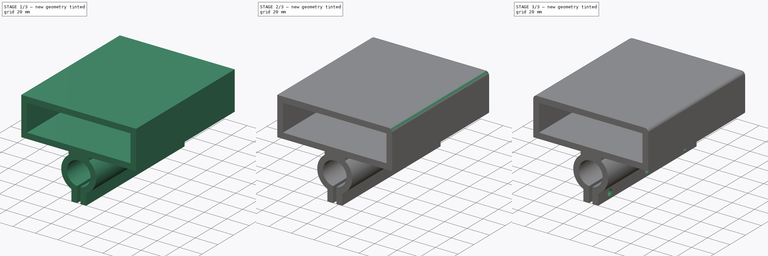
[diagram: build sequence overview — one tinted view per stage of 3, left to right]
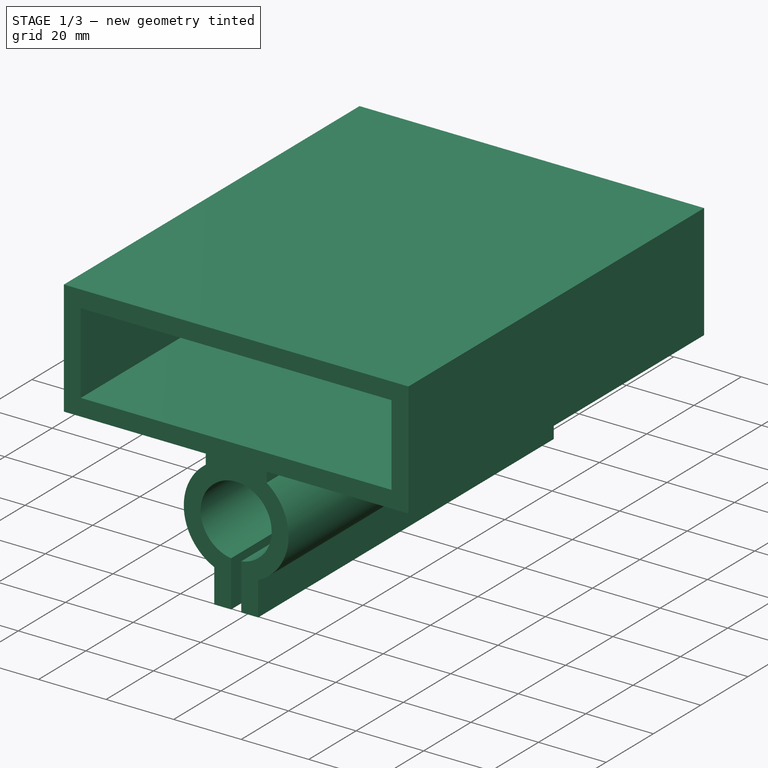
[diagram: stage 1 of 3 — iso view after this stage's code; geometry added in this stage tinted green]
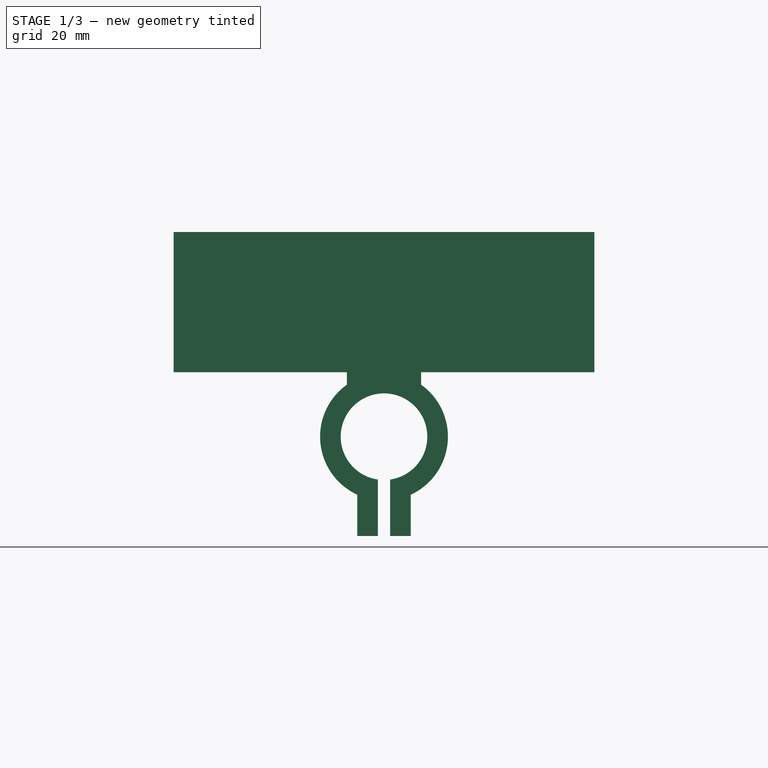
[diagram: stage 1 of 3 — front view after this stage's code; geometry added in this stage tinted green]
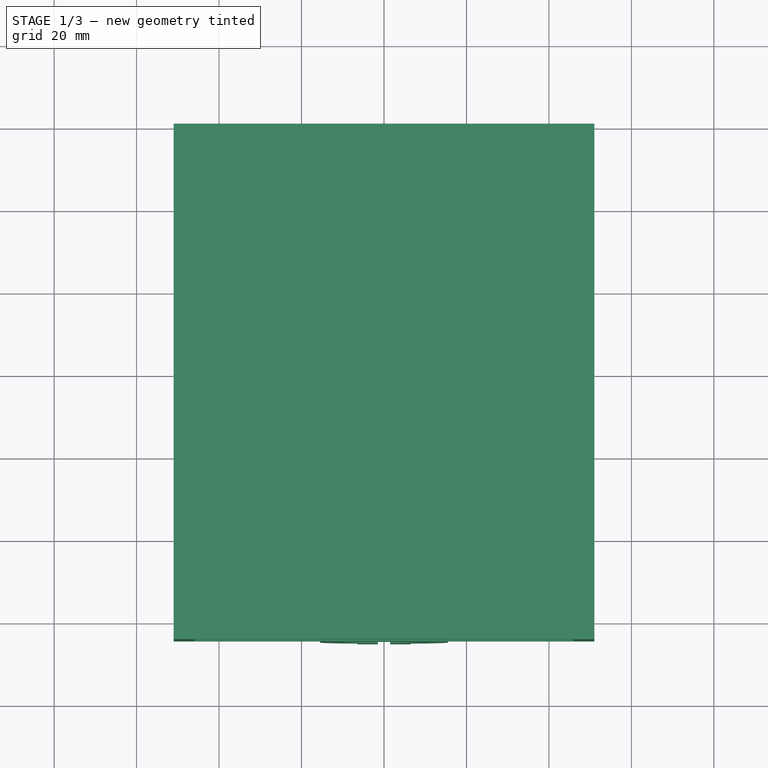
[diagram: stage 1 of 3 — top view after this stage's code; geometry added in this stage tinted green]
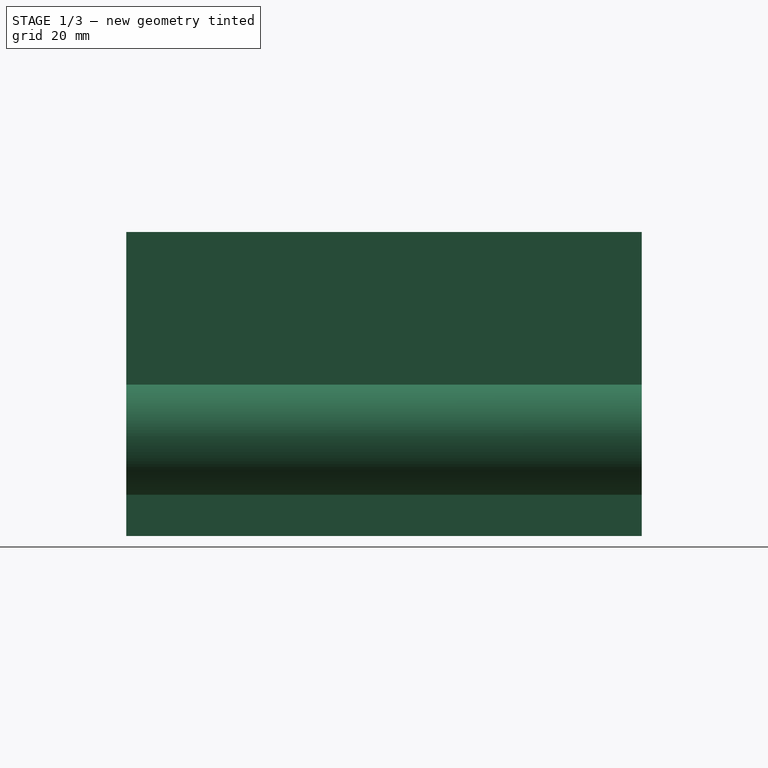
[diagram: stage 1 of 3 — right view after this stage's code; geometry added in this stage tinted green]
FCSTD DOCUMENT  (FreeCAD 0.19R)
Label: bat_holder
License: All rights reserved
LicenseURL: http://en.wikipedia.org/wiki/All_rights_reserved
objects: Sketcher::SketchObject×3, PartDesign::Fillet×3, PartDesign::Pocket×2, PartDesign::Pad×1, PartDesign::Body×1
note: 16 computed .brp shape members not serialized (recipe doc carries the construction recipe); baked Part::Feature solids carry a one-line shape summary decoded from their .brp

FEATURE [Sketcher::SketchObject] Sketch
  FullyConstrained = true
  MapMode = 5
  Placement = pos=(0,0,0) rot=(1,0,0;1.5708rad)
  Support = -> [XZ_Plane]
  sketch-geometry (16):
    g0: ArcOfCircle CenterX=0 CenterY=-15.6194 CenterZ=0 NormalX=0 NormalY=0 NormalZ=1 AngleXU=0 Radius=10.5 StartAngle=4.85574 EndAngle=10.8522
    g1: LineSegment StartX=-1.5 StartY=-26.0117 StartZ=0 EndX=-1.5 EndY=-39.6907 EndZ=0
    g2: LineSegment StartX=1.5 StartY=-26.0117 StartZ=0 EndX=1.5 EndY=-39.6907 EndZ=0
    g3: LineSegment StartX=1.5 StartY=-39.6907 StartZ=0 EndX=6.5 EndY=-39.6907 EndZ=0
    g4: LineSegment StartX=6.5 StartY=-39.6907 StartZ=0 EndX=6.5 EndY=-29.6907 EndZ=0
    g5: LineSegment StartX=-1.5 StartY=-39.6907 StartZ=0 EndX=-6.5 EndY=-39.6907 EndZ=0
    g6: LineSegment StartX=-6.5 StartY=-39.6907 StartZ=0 EndX=-6.5 EndY=-29.6907 EndZ=0
    g7: ArcOfCircle CenterX=0 CenterY=-15.6194 CenterZ=0 NormalX=0 NormalY=0 NormalZ=1 AngleXU=0 Radius=15.5 StartAngle=5.14512 EndAngle=7.23446
    g8: ArcOfCircle CenterX=0 CenterY=-15.6194 CenterZ=0 NormalX=0 NormalY=0 NormalZ=1 AngleXU=0 Radius=15.5 StartAngle=2.19032 EndAngle=4.27965
    g9: LineSegment StartX=-9 StartY=-3 StartZ=0 EndX=-9 EndY=0 EndZ=0
    g10: LineSegment StartX=9 StartY=-3 StartZ=0 EndX=9 EndY=0 EndZ=0
    g11: LineSegment StartX=-9 StartY=0 StartZ=0 EndX=-51 EndY=0 EndZ=0
    g12: LineSegment StartX=9 StartY=0 StartZ=0 EndX=51 EndY=0 EndZ=0
    g13: LineSegment StartX=-51 StartY=0 StartZ=0 EndX=-51 EndY=34 EndZ=0
    g14: LineSegment StartX=51 StartY=0 StartZ=0 EndX=51 EndY=34 EndZ=0
    g15: LineSegment StartX=-51 StartY=34 StartZ=0 EndX=51 EndY=34 EndZ=0
  constraints (48):
    c: Diameter(g0) = 21
    c: PointOnObject(g0,g-2)
    c: DistanceX(g0,g0) = 3
    c: Coincident(g1,g0)
    c: Vertical(g1)
    c: Coincident(g2,g0)
    c: Vertical(g2)
    c: Coincident(g3,g2)
    c: Horizontal(g3)
    c: Coincident(g4,g3)
    c: Vertical(g4)
    c: Coincident(g5,g1)
    c: Horizontal(g5)
    c: Coincident(g6,g5)
    c: Vertical(g6)
    c: Equal(g3,g5)
    c: Equal(g4,g6)
    c: Symmetric(g3,g5,g-2)
    c: Coincident(g7,g0)
    c: Coincident(g7,g4)
    c: Coincident(g8,g0)
    c: Coincident(g8,g6)
    c: Diameter(g7) = 31
    c: DistanceX(g5,g3) = 13
    c: DistanceY(g4,g4) = 10
    c: Coincident(g9,g8)
    c: Vertical(g9)
    c: Coincident(g10,g7)
    c: Vertical(g10)
    c: Symmetric(g9,g10,g-2)
    c: PointOnObject(g10,g-1)
    c: DistanceY(g10,g10) = 3
    c: DistanceX(g9,g10) = 18
    c: Coincident(g11,g9)
    c: PointOnObject(g11,g-1)
    c: PointOnObject(g12,g10)
    c: PointOnObject(g12,g-1)
    c: Horizontal(g12)
    c: Equal(g12,g11)
    c: DistanceX(g11,g12) = 102
    c: Coincident(g13,g11)
    c: Vertical(g13)
    c: Coincident(g14,g12)
    c: Vertical(g14)
    c: Equal(g13,g14)
    c: DistanceY(g13,g13) = 34
    c: Coincident(g15,g13)
    c: Coincident(g15,g14)
FEATURE [PartDesign::Pad] Pad
  Direction = (1,1,1)
  Length = 125
  Length2 = 100
  Placement = pos=(0,0,0) rot=(1,0,0;1.5708rad)
  Profile = -> Sketch
  Type = 0
FEATURE [Sketcher::SketchObject] Sketch001
  FullyConstrained = true
  MapMode = 5
  Placement = pos=(0,-125,8.33e-14) rot=(1,0,0;1.5708rad)
  Support = -> [Pad]
  sketch-geometry (4):
    g0: LineSegment StartX=-46 StartY=29 StartZ=0 EndX=46 EndY=29 EndZ=0
    g1: LineSegment StartX=46 StartY=29 StartZ=0 EndX=46 EndY=5 EndZ=0
    g2: LineSegment StartX=46 StartY=5 StartZ=0 EndX=-46 EndY=5 EndZ=0
    g3: LineSegment StartX=-46 StartY=5 StartZ=0 EndX=-46 EndY=29 EndZ=0
  constraints (11):
    c: Coincident(g0,g1)
    c: Coincident(g1,g2)
    c: Coincident(g2,g3)
    c: Coincident(g3,g0)
    c: Horizontal(g0)
    c: Vertical(g1)
    c: Vertical(g3)
    c: DistanceY(g1,g1) = 24
    c: DistanceX(g0,g0) = 92
    c: DistanceY(g-1,g2) = 5
    c: Symmetric(g2,g1,g-2)
FEATURE [PartDesign::Pocket] Pocket
  BaseFeature = -> Pad
  Length = 120
  Length2 = 100
  Placement = pos=(0,0,0) rot=(1,0,0;1.5708rad)
  Profile = -> Sketch001
  Type = 0
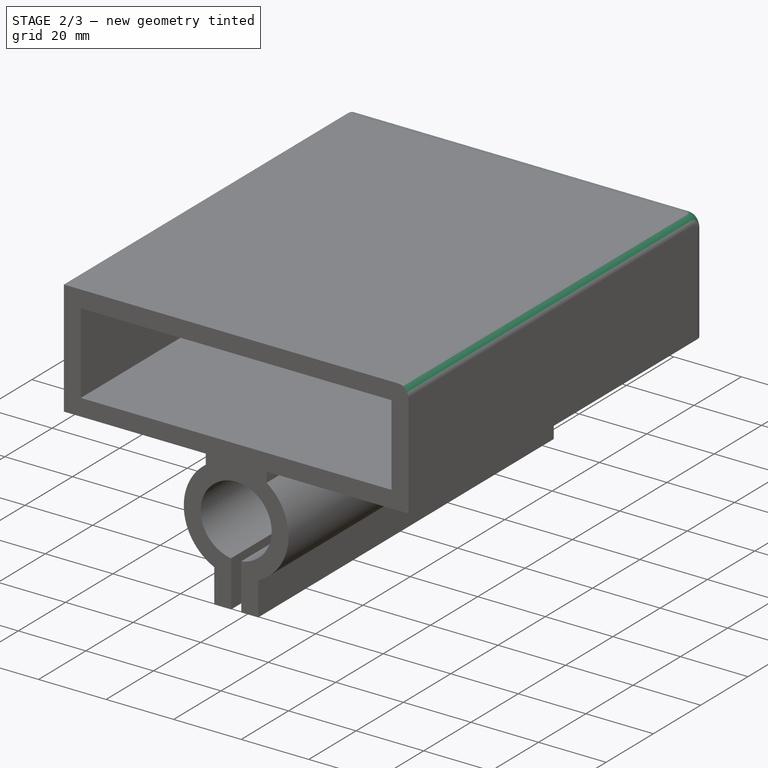
[diagram: stage 2 of 3 — iso view after this stage's code; geometry added in this stage tinted green]
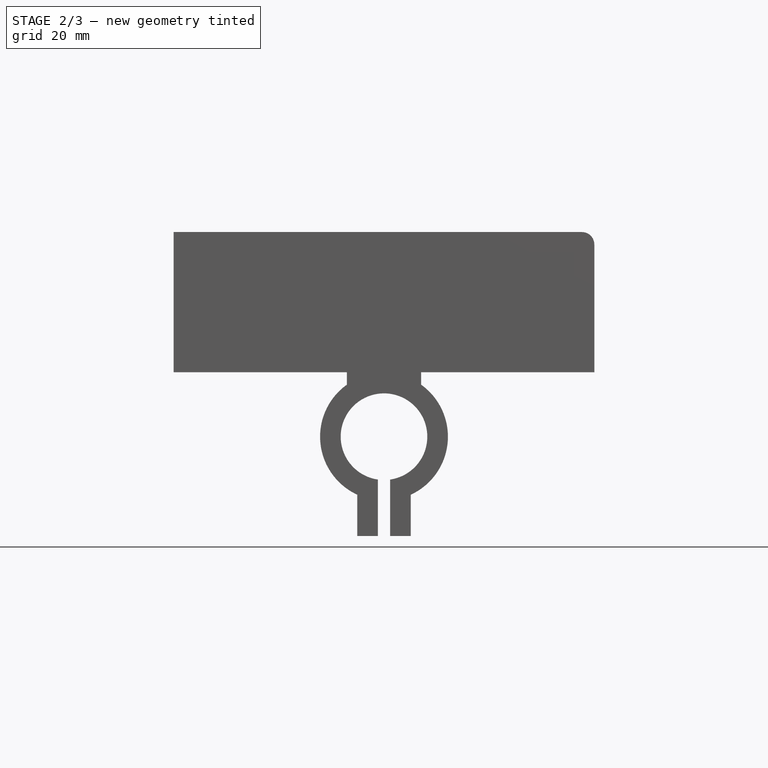
[diagram: stage 2 of 3 — front view after this stage's code; geometry added in this stage tinted green]
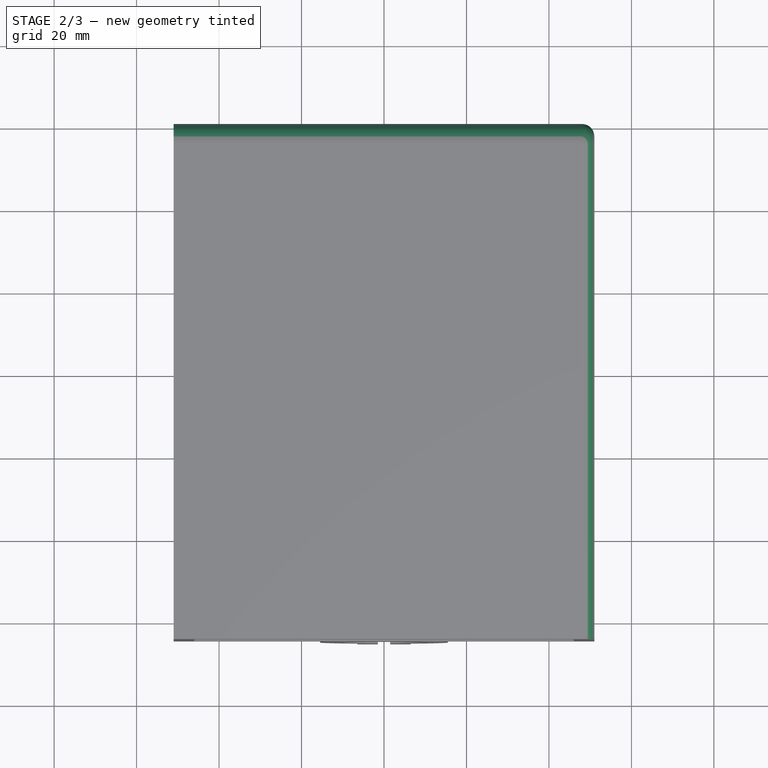
[diagram: stage 2 of 3 — top view after this stage's code; geometry added in this stage tinted green]
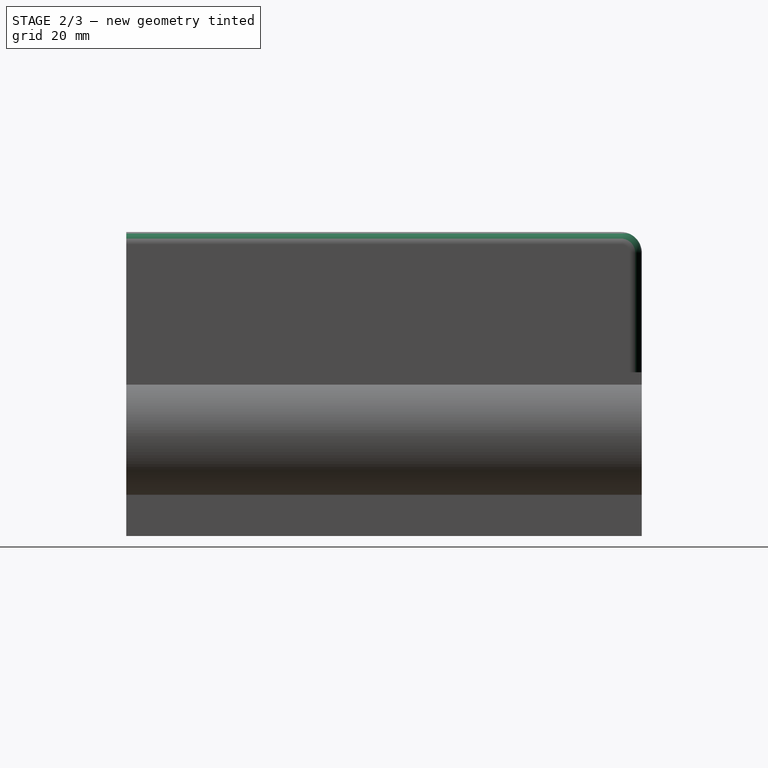
[diagram: stage 2 of 3 — right view after this stage's code; geometry added in this stage tinted green]
FEATURE [PartDesign::Fillet] Fillet
  Base = -> Pocket [Edge17]
  BaseFeature = -> Pocket
  Placement = pos=(0,0,0) rot=(1,0,0;1.5708rad)
  Radius = 5
  SupportTransform = false
FEATURE [PartDesign::Fillet] Fillet001
  Base = -> Fillet [Edge4]
  BaseFeature = -> Fillet
  Placement = pos=(0,0,0) rot=(1,0,0;1.5708rad)
  Radius = 3
  SupportTransform = false
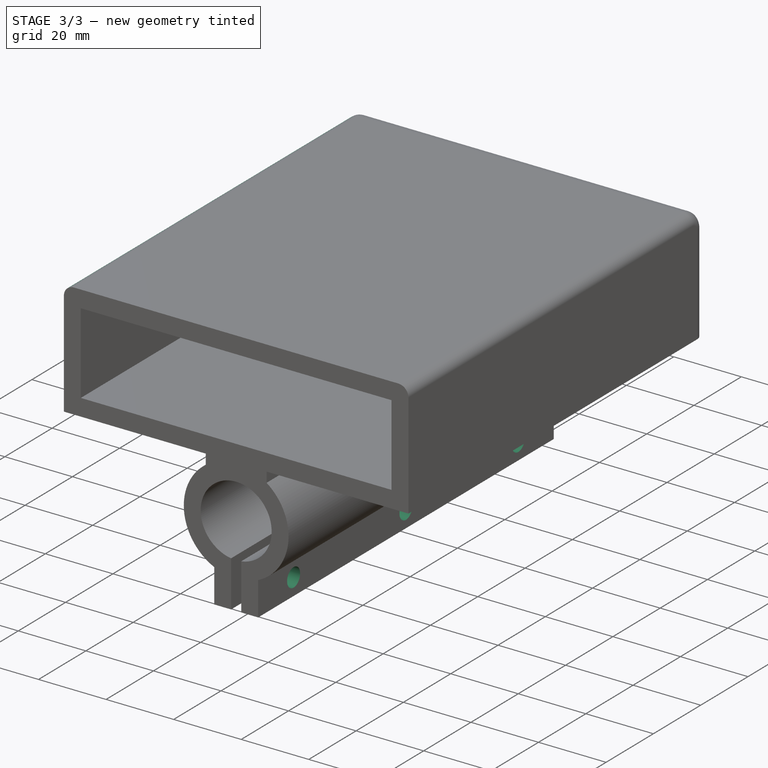
[diagram: stage 3 of 3 — iso view after this stage's code; geometry added in this stage tinted green]
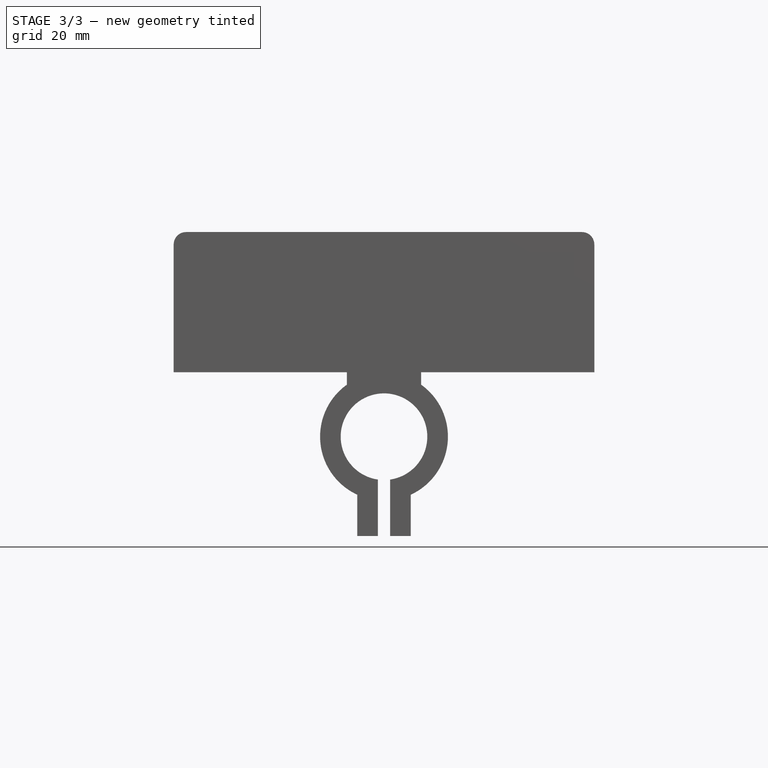
[diagram: stage 3 of 3 — front view after this stage's code; geometry added in this stage tinted green]
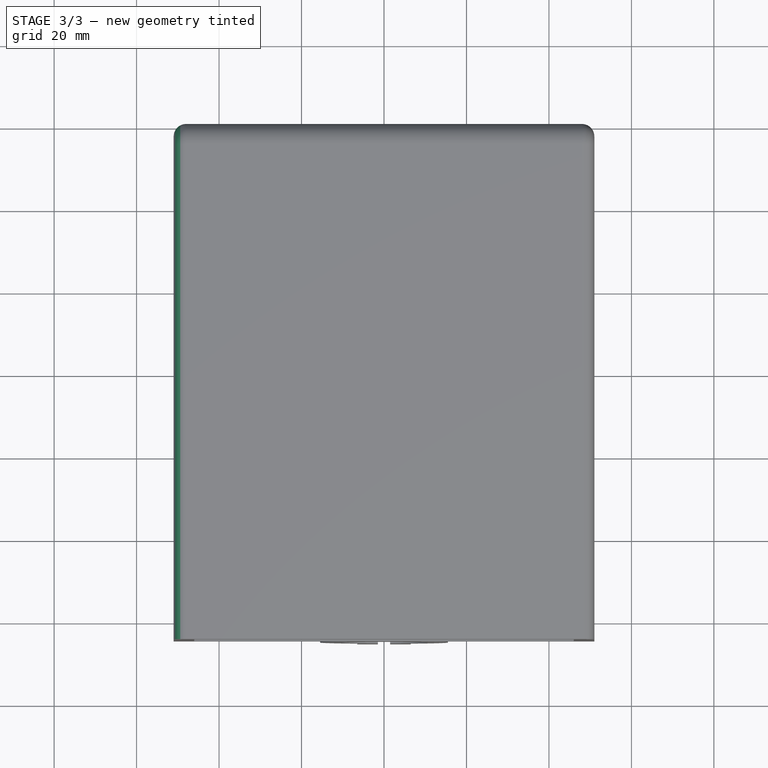
[diagram: stage 3 of 3 — top view after this stage's code; geometry added in this stage tinted green]
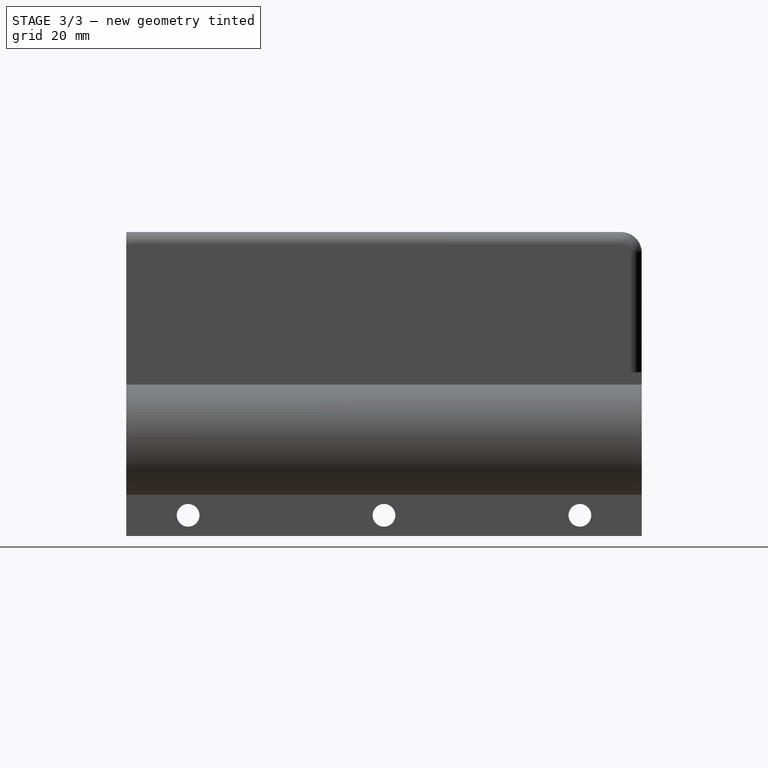
[diagram: stage 3 of 3 — right view after this stage's code; geometry added in this stage tinted green]
FEATURE [PartDesign::Fillet] Fillet002
  Base = -> Fillet001 [Edge3]
  BaseFeature = -> Fillet001
  Placement = pos=(0,0,0) rot=(1,0,0;1.5708rad)
  Radius = 3
  SupportTransform = false
FEATURE [Sketcher::SketchObject] Sketch002
  ExternalGeometry = -> [Fillet002]
  FullyConstrained = true
  MapMode = 5
  Placement = pos=(6.5,0,0) rot=(0.707107,0,0.707107;3.14159rad)
  Support = -> [Fillet002]
  sketch-geometry (3):
    g0: Circle CenterX=-34.6907 CenterY=110 CenterZ=0 NormalX=0 NormalY=0 NormalZ=1 AngleXU=0 Radius=2.75
    g1: Circle CenterX=-34.6907 CenterY=62.5 CenterZ=0 NormalX=0 NormalY=0 NormalZ=1 AngleXU=0 Radius=2.75
    g2: Circle CenterX=-34.6907 CenterY=15 CenterZ=0 NormalX=0 NormalY=0 NormalZ=1 AngleXU=0 Radius=2.75
  constraints (9):
    c: Equal(g2,g1)
    c: Equal(g1,g0)
    c: Diameter(g0) = 5.5
    c: DistanceX(g-3,g0) = 5
    c: DistanceX(g-3,g1) = 5
    c: DistanceX(g-3,g2) = 5
    c: DistanceY(g-3,g2) = 15
    c: DistanceY(g0,g-3) = 15
    c: DistanceY(g1,g-3) = 62.5
FEATURE [PartDesign::Pocket] Pocket001
  BaseFeature = -> Fillet002
  Length = 5
  Length2 = 100
  Placement = pos=(0,0,0) rot=(1,0,0;1.5708rad)
  Profile = -> Sketch002
  Type = 1
FEATURE [PartDesign::Body] Body
  Group = -> [Sketch,Pad,Sketch001,Pocket,Fillet,Fillet001,Fillet002,Sketch002,Pocket001]
  Origin = -> Origin
  Tip = -> Pocket001
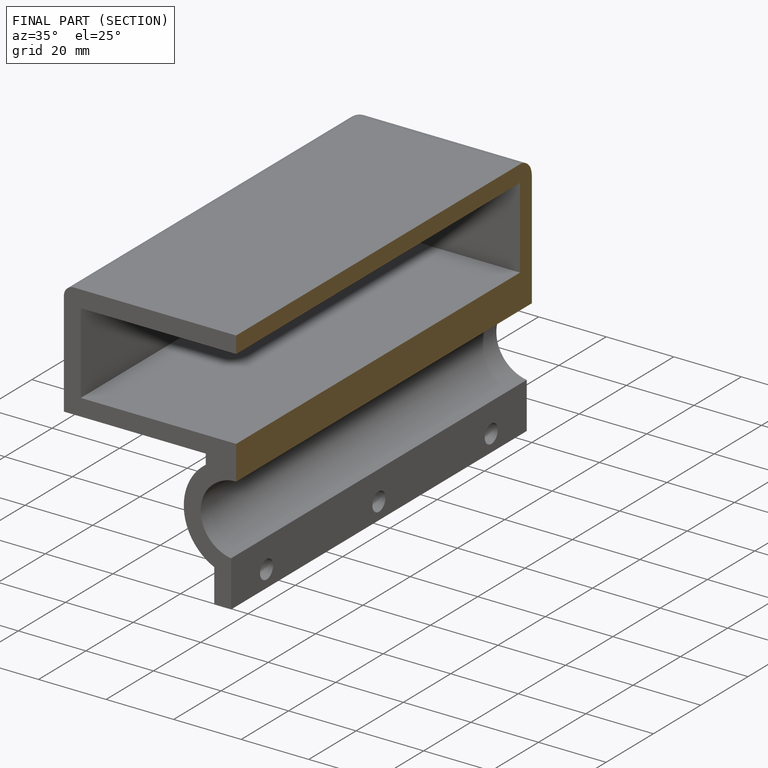
[diagram: finished part — half-section view (interior)]
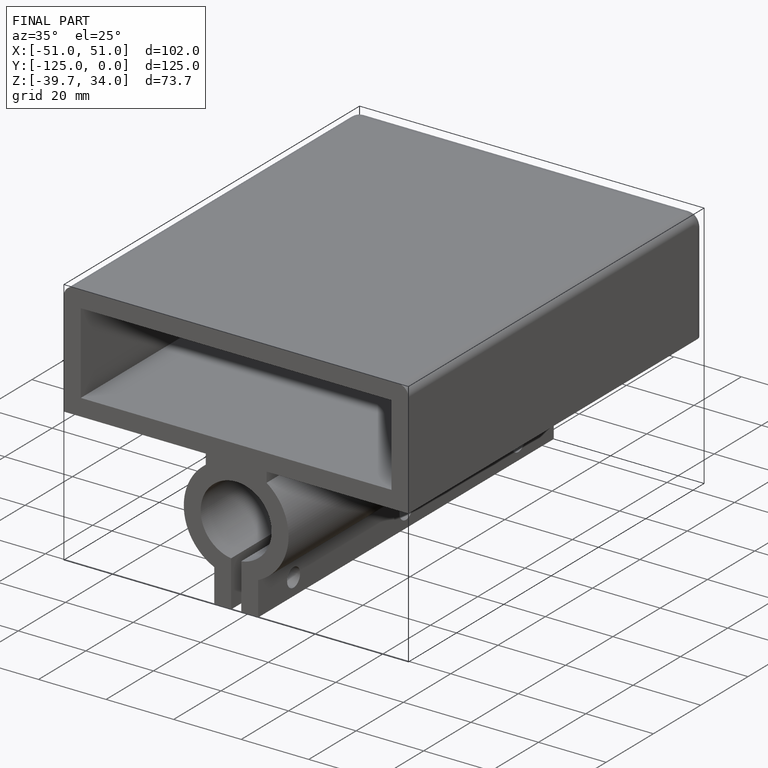
[diagram: finished part — iso view with bounding-box wireframe]
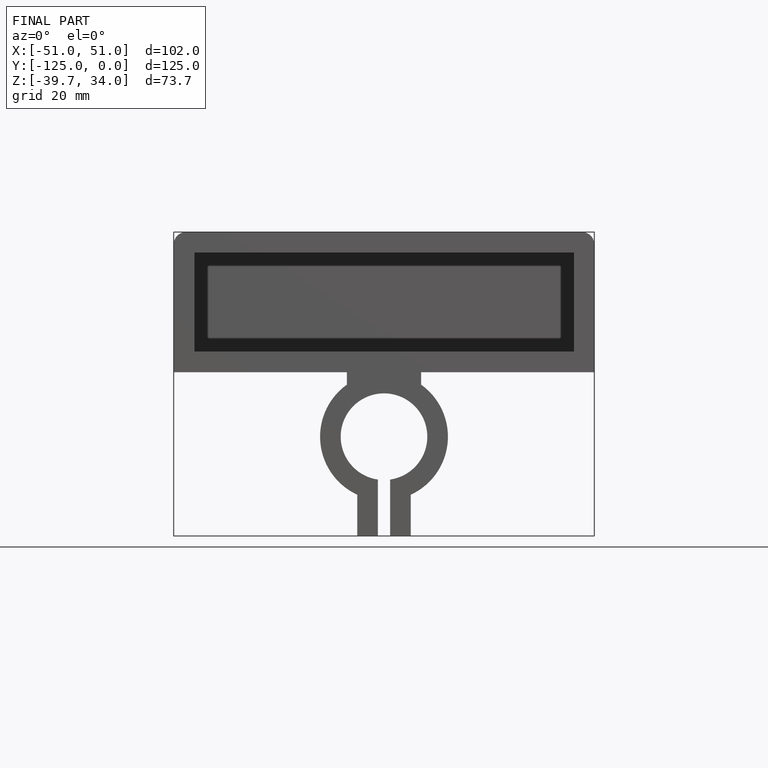
[diagram: finished part — front view with bounding-box wireframe]
